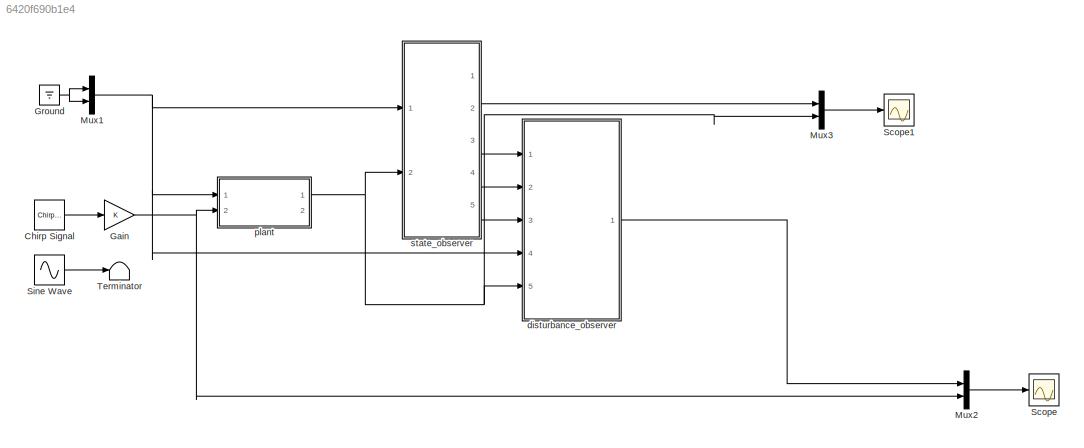
MODEL slx_6420f690b1e4
KIND model
CONFIG AbsTol = auto
CONFIG FixedStep = 1e-4
CONFIG MaxStep = auto
CONFIG MinStep = auto
CONFIG RelTol = 1e-3
CONFIG SampleTimeConstraint = Unconstrained
CONFIG Solver = ode45
CONFIG SolverMode = Auto
CONFIG SolverName = ode45
CONFIG StartTime = 0.0
CONFIG StopTime = 10
BLOCK [Reference] Chirp Signal  REF=simulink/Sources/Chirp Signal
  Ports = [0, 1]
  SourceBlock = simulink/Sources/Chirp Signal
  SourceType = chirp
  T = 10
  VectorParams1D = on
  f1 = 0.1
  f2 = 85
BLOCK [Gain] Gain
  OutDataTypeStr = Inherit: Inherit via internal rule
  ParamDataTypeStr = Inherit: Inherit via internal rule
  SaturateOnIntegerOverflow = off
BLOCK [Ground] Ground
BLOCK [Mux] Mux1
  DisplayOption = bar
  Inputs = 2
  Ports = [2, 1]
BLOCK [Mux] Mux2
  DisplayOption = bar
  Inputs = 2
  Ports = [2, 1]
BLOCK [Mux] Mux3
  DisplayOption = bar
  Inputs = 2
  Ports = [2, 1]
BLOCK [Scope] Scope
  Floating = off
  LimitDataPoints = off
  NumInputPorts = 1
  Ports = [1]
  YMax = 15
  YMin = -15
BLOCK [Scope] Scope1
  Floating = off
  LimitDataPoints = off
  NumInputPorts = 1
  Ports = [1]
  SaveName = ScopeData1
BLOCK [Sin] Sine Wave
  Frequency = 14*2*pi
  Ports = [0, 1]
  SampleTime = 0
BLOCK [Terminator] Terminator
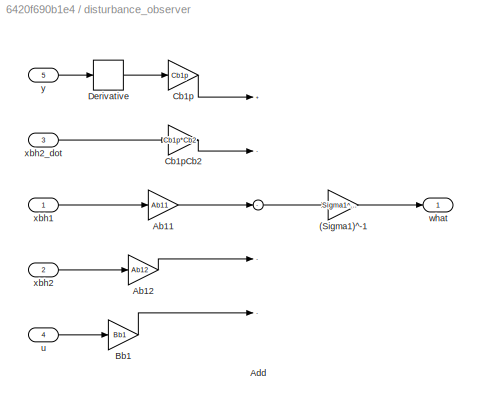
BLOCK [SubSystem] disturbance_observer
  Ports = [5, 1]
  RequestExecContextInheritance = off
BLOCK [Gain] disturbance_observer/(Sigma1)^-1
  Gain = Sigma1^-1
  Multiplication = Matrix(K*u)
  OutDataTypeStr = Inherit: Inherit via internal rule
  ParamDataTypeStr = Inherit: Inherit via internal rule
  SaturateOnIntegerOverflow = off
BLOCK [Gain] disturbance_observer/Ab11
  Gain = Ab11
  Multiplication = Matrix(K*u)
  OutDataTypeStr = Inherit: Inherit via internal rule
  ParamDataTypeStr = Inherit: Inherit via internal rule
  SaturateOnIntegerOverflow = off
BLOCK [Gain] disturbance_observer/Ab12
  Gain = Ab12
  Multiplication = Matrix(K*u)
  OutDataTypeStr = Inherit: Inherit via internal rule
  ParamDataTypeStr = Inherit: Inherit via internal rule
  SaturateOnIntegerOverflow = off
BLOCK [Sum] disturbance_observer/Add
  InputSameDT = off
  Inputs = +----
  OutDataTypeStr = Inherit: Inherit via internal rule
  Ports = [5, 1]
  SaturateOnIntegerOverflow = off
BLOCK [Gain] disturbance_observer/Bb1
  Gain = Bb1
  Multiplication = Matrix(K*u)
  OutDataTypeStr = Inherit: Inherit via internal rule
  ParamDataTypeStr = Inherit: Inherit via internal rule
  SaturateOnIntegerOverflow = off
BLOCK [Gain] disturbance_observer/Cb1p
  Gain = Cb1p
  Multiplication = Matrix(K*u)
  OutDataTypeStr = Inherit: Inherit via internal rule
  ParamDataTypeStr = Inherit: Inherit via internal rule
  SaturateOnIntegerOverflow = off
BLOCK [Gain] disturbance_observer/Cb1pCb2
  Gain = Cb1p*Cb2
  Multiplication = Matrix(K*u)
  OutDataTypeStr = Inherit: Inherit via internal rule
  ParamDataTypeStr = Inherit: Inherit via internal rule
  SaturateOnIntegerOverflow = off
BLOCK [Derivative] disturbance_observer/Derivative
BLOCK [Inport] disturbance_observer/u
  IconDisplay = Port number
  Port = 4
BLOCK [Outport] disturbance_observer/what
  IconDisplay = Port number
BLOCK [Inport] disturbance_observer/xbh1
  IconDisplay = Port number
BLOCK [Inport] disturbance_observer/xbh2
  IconDisplay = Port number
  Port = 2
BLOCK [Inport] disturbance_observer/xbh2_dot
  IconDisplay = Port number
  Port = 3
BLOCK [Inport] disturbance_observer/y
  IconDisplay = Port number
  Port = 5
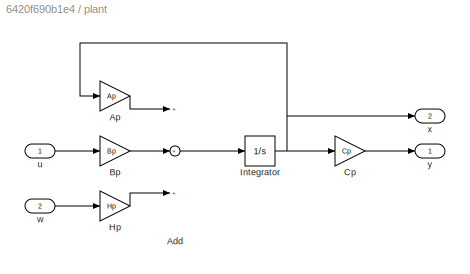
BLOCK [SubSystem] plant
  Ports = [2, 2]
  RequestExecContextInheritance = off
BLOCK [Sum] plant/Add
  InputSameDT = off
  Inputs = +++
  OutDataTypeStr = Inherit: Inherit via internal rule
  Ports = [3, 1]
  SaturateOnIntegerOverflow = off
BLOCK [Gain] plant/Ap
  Gain = Ap
  Multiplication = Matrix(K*u)
  OutDataTypeStr = Inherit: Inherit via internal rule
  ParamDataTypeStr = Inherit: Inherit via internal rule
  SaturateOnIntegerOverflow = off
BLOCK [Gain] plant/Bp
  Gain = Bp
  Multiplication = Matrix(K*u)
  OutDataTypeStr = Inherit: Inherit via internal rule
  ParamDataTypeStr = Inherit: Inherit via internal rule
  SaturateOnIntegerOverflow = off
BLOCK [Gain] plant/Cp
  Gain = Cp
  Multiplication = Matrix(K*u)
  OutDataTypeStr = Inherit: Inherit via internal rule
  ParamDataTypeStr = Inherit: Inherit via internal rule
  SaturateOnIntegerOverflow = off
BLOCK [Gain] plant/Hp
  Gain = Hp
  Multiplication = Matrix(K*u)
  OutDataTypeStr = Inherit: Inherit via internal rule
  ParamDataTypeStr = Inherit: Inherit via internal rule
  SaturateOnIntegerOverflow = off
BLOCK [Integrator] plant/Integrator
  Ports = [1, 1]
BLOCK [Inport] plant/u
  IconDisplay = Port number
BLOCK [Inport] plant/w
  IconDisplay = Port number
  Port = 2
BLOCK [Outport] plant/x
  IconDisplay = Port number
  Port = 2
BLOCK [Outport] plant/y
  IconDisplay = Port number
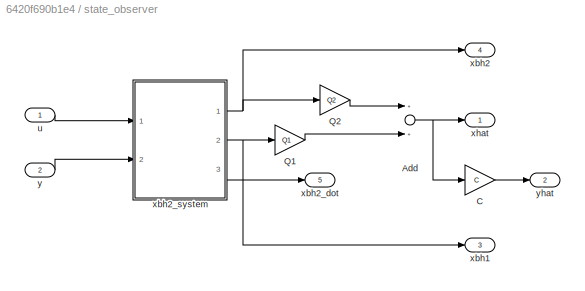
BLOCK [SubSystem] state_observer
  Ports = [2, 5]
  RequestExecContextInheritance = off
BLOCK [Sum] state_observer/Add
  InputSameDT = off
  OutDataTypeStr = Inherit: Inherit via internal rule
  Ports = [2, 1]
  SaturateOnIntegerOverflow = off
BLOCK [Gain] state_observer/C
  Gain = C
  Multiplication = Matrix(K*u)
  OutDataTypeStr = Inherit: Inherit via internal rule
  ParamDataTypeStr = Inherit: Inherit via internal rule
  SaturateOnIntegerOverflow = off
BLOCK [Gain] state_observer/Q1
  Gain = Q1
  Multiplication = Matrix(K*u)
  OutDataTypeStr = Inherit: Inherit via internal rule
  ParamDataTypeStr = Inherit: Inherit via internal rule
  SaturateOnIntegerOverflow = off
BLOCK [Gain] state_observer/Q2
  Gain = Q2
  Multiplication = Matrix(K*u)
  OutDataTypeStr = Inherit: Inherit via internal rule
  ParamDataTypeStr = Inherit: Inherit via internal rule
  SaturateOnIntegerOverflow = off
BLOCK [Inport] state_observer/u
  IconDisplay = Port number
BLOCK [Outport] state_observer/xbh1
  IconDisplay = Port number
  Port = 3
BLOCK [Outport] state_observer/xbh2
  IconDisplay = Port number
  Port = 4
BLOCK [Outport] state_observer/xbh2_dot
  IconDisplay = Port number
  Port = 5
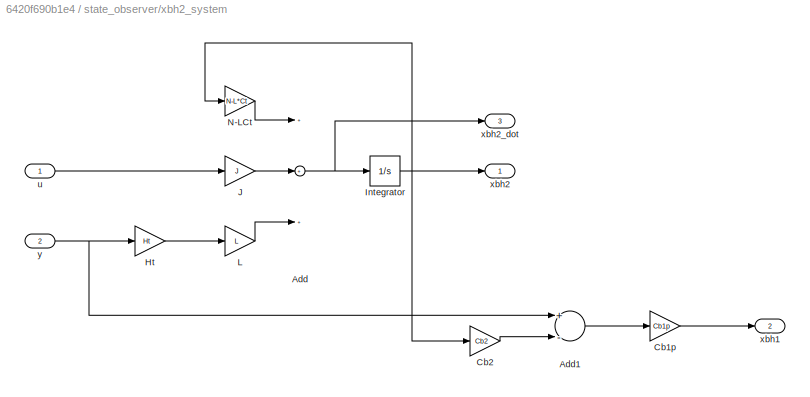
BLOCK [SubSystem] state_observer/xbh2_system
  Ports = [2, 3]
  RequestExecContextInheritance = off
BLOCK [Sum] state_observer/xbh2_system/Add
  InputSameDT = off
  Inputs = +++
  OutDataTypeStr = Inherit: Inherit via internal rule
  Ports = [3, 1]
  SaturateOnIntegerOverflow = off
BLOCK [Sum] state_observer/xbh2_system/Add1
  InputSameDT = off
  Inputs = +-
  OutDataTypeStr = Inherit: Inherit via internal rule
  Ports = [2, 1]
  SaturateOnIntegerOverflow = off
BLOCK [Gain] state_observer/xbh2_system/Cb1p
  Gain = Cb1p
  Multiplication = Matrix(K*u)
  OutDataTypeStr = Inherit: Inherit via internal rule
  ParamDataTypeStr = Inherit: Inherit via internal rule
  SaturateOnIntegerOverflow = off
BLOCK [Gain] state_observer/xbh2_system/Cb2
  Gain = Cb2
  Multiplication = Matrix(K*u)
  OutDataTypeStr = Inherit: Inherit via internal rule
  ParamDataTypeStr = Inherit: Inherit via internal rule
  SaturateOnIntegerOverflow = off
BLOCK [Gain] state_observer/xbh2_system/Ht
  Gain = Ht
  Multiplication = Matrix(K*u)
  OutDataTypeStr = Inherit: Inherit via internal rule
  ParamDataTypeStr = Inherit: Inherit via internal rule
  SaturateOnIntegerOverflow = off
BLOCK [Integrator] state_observer/xbh2_system/Integrator
  Ports = [1, 1]
BLOCK [Gain] state_observer/xbh2_system/J
  Gain = J
  Multiplication = Matrix(K*u)
  OutDataTypeStr = Inherit: Inherit via internal rule
  ParamDataTypeStr = Inherit: Inherit via internal rule
  SaturateOnIntegerOverflow = off
BLOCK [Gain] state_observer/xbh2_system/L
  Gain = L
  Multiplication = Matrix(K*u)
  OutDataTypeStr = Inherit: Inherit via internal rule
  ParamDataTypeStr = Inherit: Inherit via internal rule
  SaturateOnIntegerOverflow = off
BLOCK [Gain] state_observer/xbh2_system/N-LCt
  Gain = N-L*Ct
  Multiplication = Matrix(K*u)
  OutDataTypeStr = Inherit: Inherit via internal rule
  ParamDataTypeStr = Inherit: Inherit via internal rule
  SaturateOnIntegerOverflow = off
BLOCK [Inport] state_observer/xbh2_system/u
  IconDisplay = Port number
BLOCK [Outport] state_observer/xbh2_system/xbh1
  IconDisplay = Port number
  Port = 2
BLOCK [Outport] state_observer/xbh2_system/xbh2
  IconDisplay = Port number
BLOCK [Outport] state_observer/xbh2_system/xbh2_dot
  IconDisplay = Port number
  Port = 3
BLOCK [Inport] state_observer/xbh2_system/y
  IconDisplay = Port number
  Port = 2
BLOCK [Outport] state_observer/xhat
  IconDisplay = Port number
BLOCK [Inport] state_observer/y
  IconDisplay = Port number
  Port = 2
BLOCK [Outport] state_observer/yhat
  IconDisplay = Port number
  Port = 2
LINE Chirp Signal:1 -> Gain:1
NET Gain:1 -> Mux2:2, plant:2
NET Ground:1 -> Mux1:1, Mux1:2
NET Mux1:1 -> disturbance_observer:4, plant:1, state_observer:1
LINE Mux2:1 -> Scope:1
LINE Mux3:1 -> Scope1:1
LINE Sine Wave:1 -> Terminator:1
LINE disturbance_observer/(Sigma1)^-1:1 -> disturbance_observer/what:1
LINE disturbance_observer/Ab11:1 -> disturbance_observer/Add:3
LINE disturbance_observer/Ab12:1 -> disturbance_observer/Add:4
LINE disturbance_observer/Add:1 -> disturbance_observer/(Sigma1)^-1:1
LINE disturbance_observer/Bb1:1 -> disturbance_observer/Add:5
LINE disturbance_observer/Cb1p:1 -> disturbance_observer/Add:1
LINE disturbance_observer/Cb1pCb2:1 -> disturbance_observer/Add:2
LINE disturbance_observer/Derivative:1 -> disturbance_observer/Cb1p:1
LINE disturbance_observer/u:1 -> disturbance_observer/Bb1:1
LINE disturbance_observer/xbh1:1 -> disturbance_observer/Ab11:1
LINE disturbance_observer/xbh2:1 -> disturbance_observer/Ab12:1
LINE disturbance_observer/xbh2_dot:1 -> disturbance_observer/Cb1pCb2:1
LINE disturbance_observer/y:1 -> disturbance_observer/Derivative:1
LINE disturbance_observer:1 -> Mux2:1
LINE plant/Add:1 -> plant/Integrator:1
LINE plant/Ap:1 -> plant/Add:1
LINE plant/Bp:1 -> plant/Add:2
LINE plant/Cp:1 -> plant/y:1
LINE plant/Hp:1 -> plant/Add:3
NET plant/Integrator:1 -> plant/Ap:1, plant/Cp:1, plant/x:1
LINE plant/u:1 -> plant/Bp:1
LINE plant/w:1 -> plant/Hp:1
NET plant:1 -> Mux3:2, disturbance_observer:5, state_observer:2
NET state_observer/Add:1 -> state_observer/C:1, state_observer/xhat:1
LINE state_observer/C:1 -> state_observer/yhat:1
LINE state_observer/Q1:1 -> state_observer/Add:2
LINE state_observer/Q2:1 -> state_observer/Add:1
LINE state_observer/u:1 -> state_observer/xbh2_system:1
LINE state_observer/xbh2_system/Add1:1 -> state_observer/xbh2_system/Cb1p:1
NET state_observer/xbh2_system/Add:1 -> state_observer/xbh2_system/Integrator:1, state_observer/xbh2_system/xbh2_dot:1
LINE state_observer/xbh2_system/Cb1p:1 -> state_observer/xbh2_system/xbh1:1
LINE state_observer/xbh2_system/Cb2:1 -> state_observer/xbh2_system/Add1:2
LINE state_observer/xbh2_system/Ht:1 -> state_observer/xbh2_system/L:1
NET state_observer/xbh2_system/Integrator:1 -> state_observer/xbh2_system/Cb2:1, state_observer/xbh2_system/N-LCt:1, state_observer/xbh2_system/xbh2:1
LINE state_observer/xbh2_system/J:1 -> state_observer/xbh2_system/Add:2
LINE state_observer/xbh2_system/L:1 -> state_observer/xbh2_system/Add:3
LINE state_observer/xbh2_system/N-LCt:1 -> state_observer/xbh2_system/Add:1
LINE state_observer/xbh2_system/u:1 -> state_observer/xbh2_system/J:1
NET state_observer/xbh2_system/y:1 -> state_observer/xbh2_system/Add1:1, state_observer/xbh2_system/Ht:1
NET state_observer/xbh2_system:1 -> state_observer/Q2:1, state_observer/xbh2:1
NET state_observer/xbh2_system:2 -> state_observer/Q1:1, state_observer/xbh1:1
LINE state_observer/xbh2_system:3 -> state_observer/xbh2_dot:1
LINE state_observer/y:1 -> state_observer/xbh2_system:2
LINE state_observer:2 -> Mux3:1
LINE state_observer:3 -> disturbance_observer:1
LINE state_observer:4 -> disturbance_observer:2
LINE state_observer:5 -> disturbance_observer:3
note: NET lines group one-source signal fan-out (src -> all destinations, sorted); 1:1 wires keep LINE
